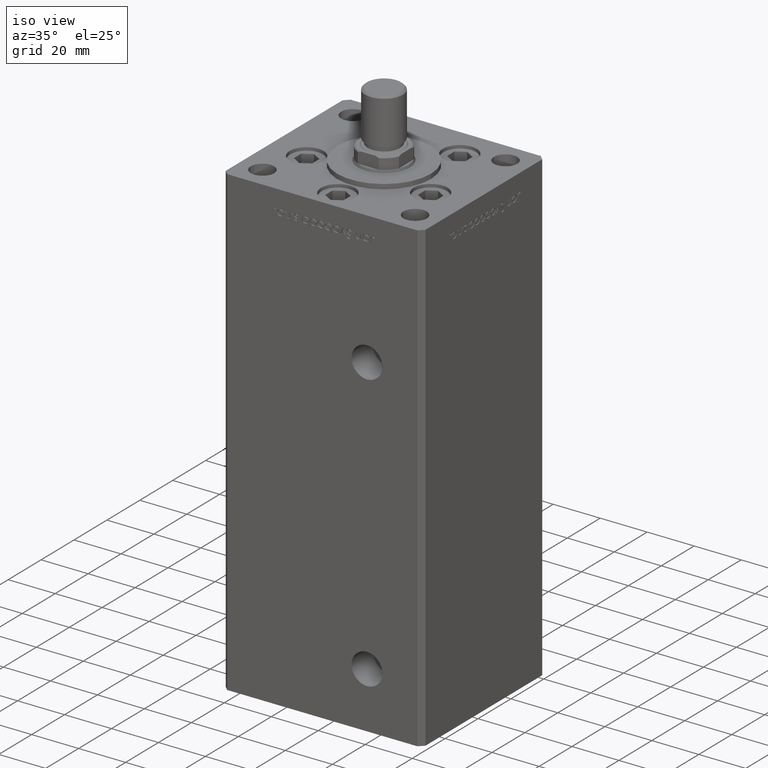
[diagram: clean part render]
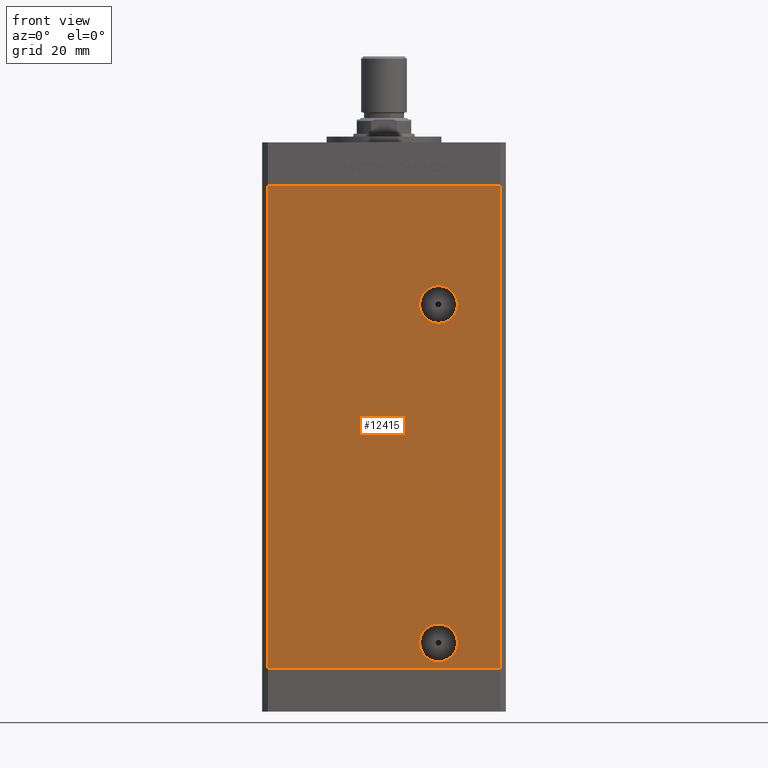
[diagram: tour spotlight — one face highlighted and labeled with its STEP entity id]
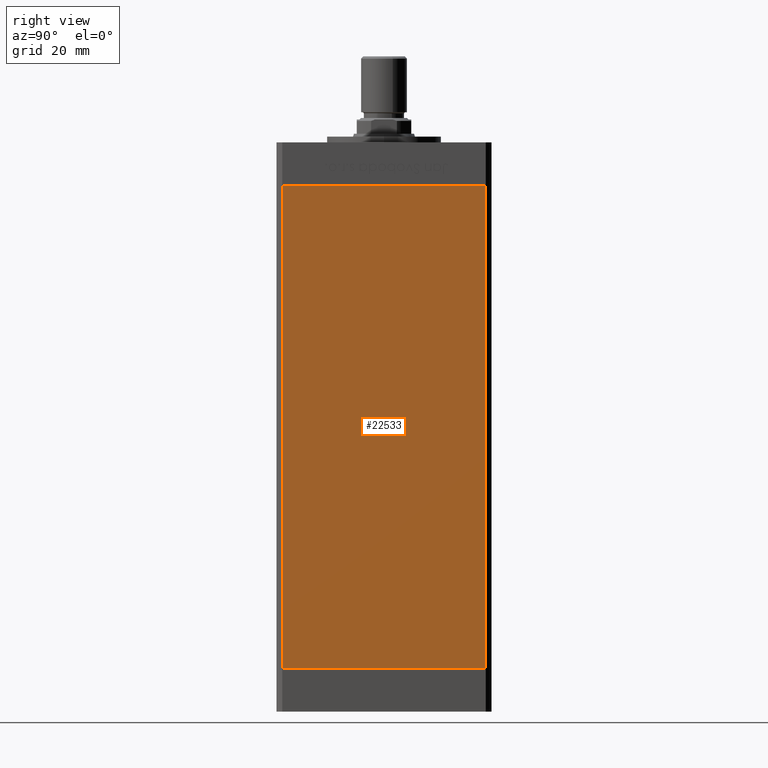
[diagram: tour spotlight — one face highlighted and labeled with its STEP entity id]
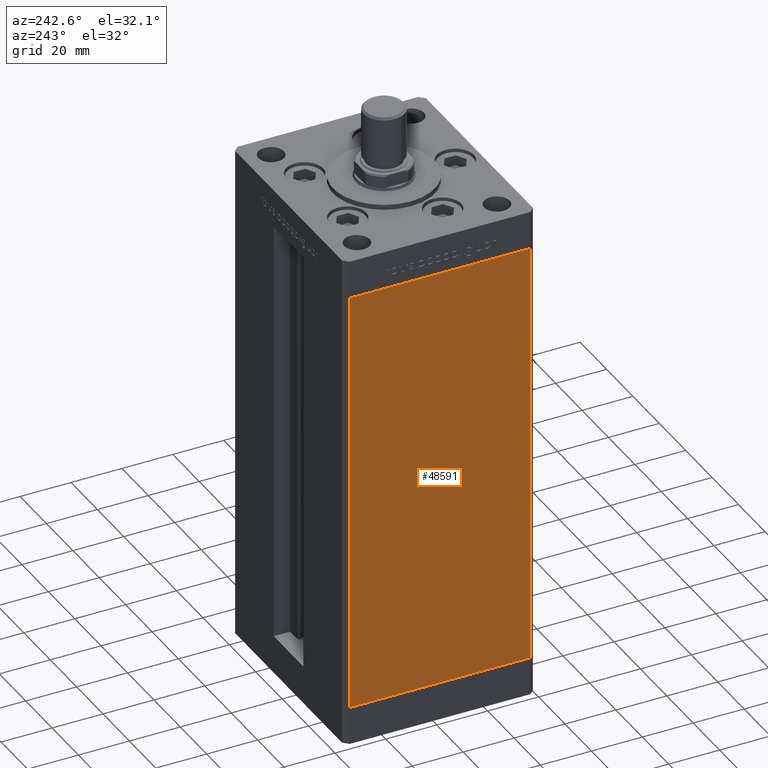
[diagram: tour spotlight — one face highlighted and labeled with its STEP entity id]
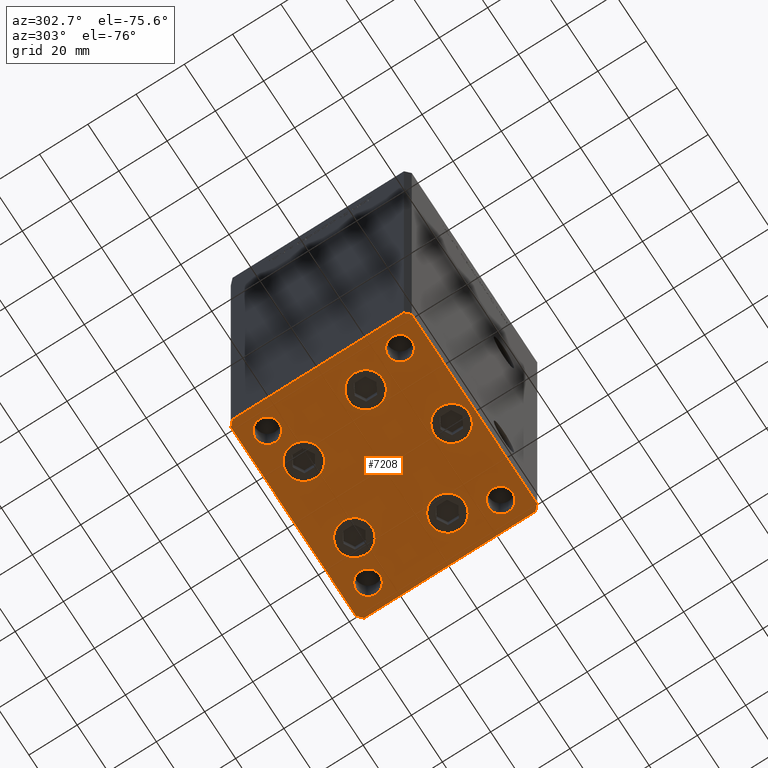
[diagram: tour spotlight — one face highlighted and labeled with its STEP entity id]
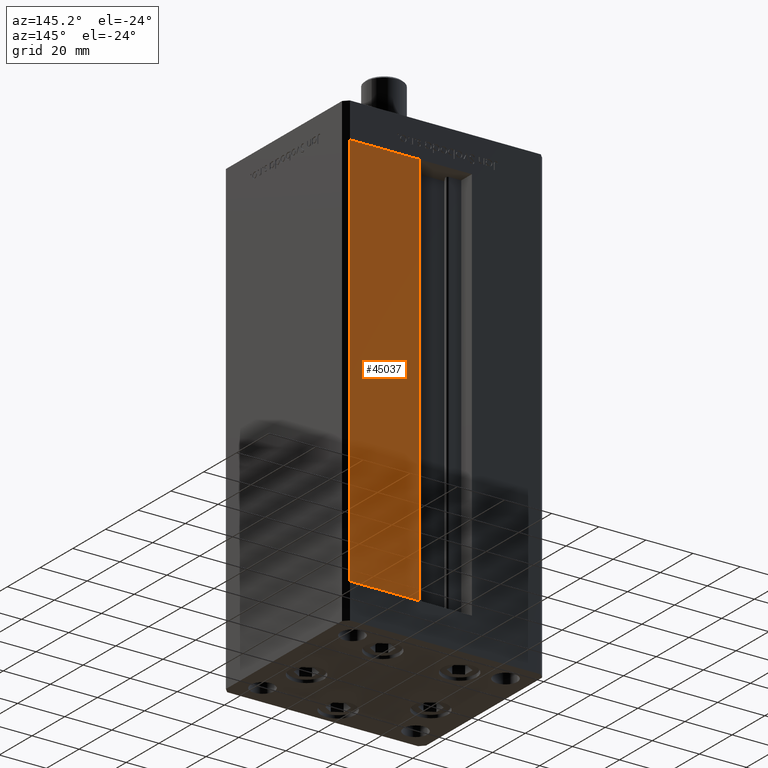
[diagram: tour spotlight — one face highlighted and labeled with its STEP entity id]
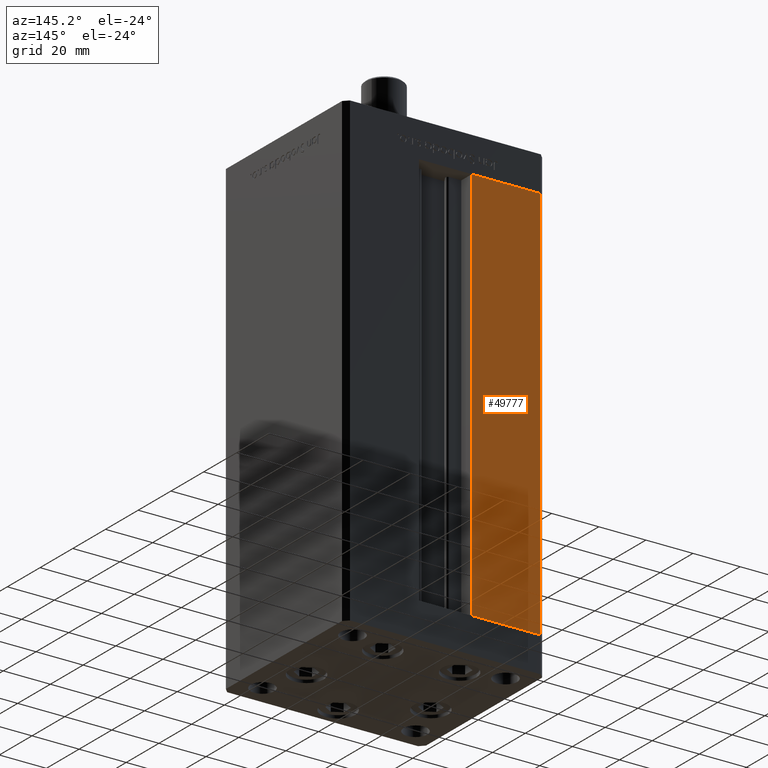
[diagram: tour spotlight — one face highlighted and labeled with its STEP entity id]
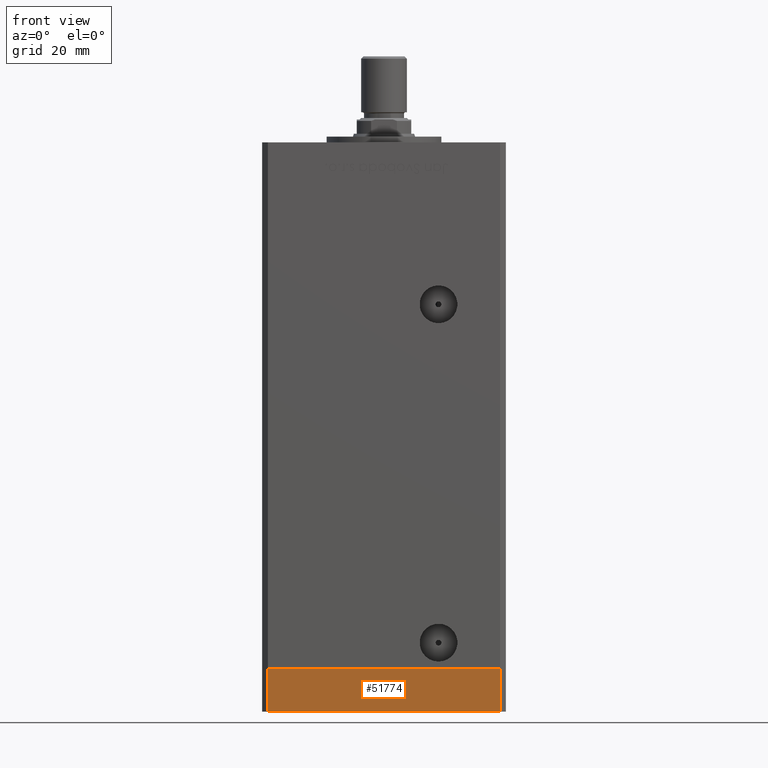
[diagram: tour spotlight — one face highlighted and labeled with its STEP entity id]
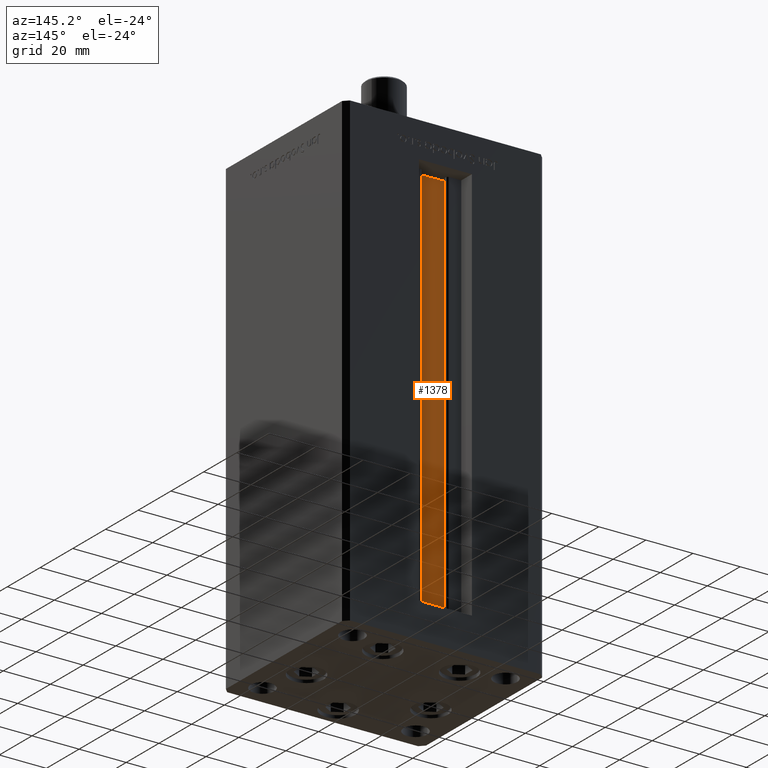
[diagram: tour spotlight — one face highlighted and labeled with its STEP entity id]
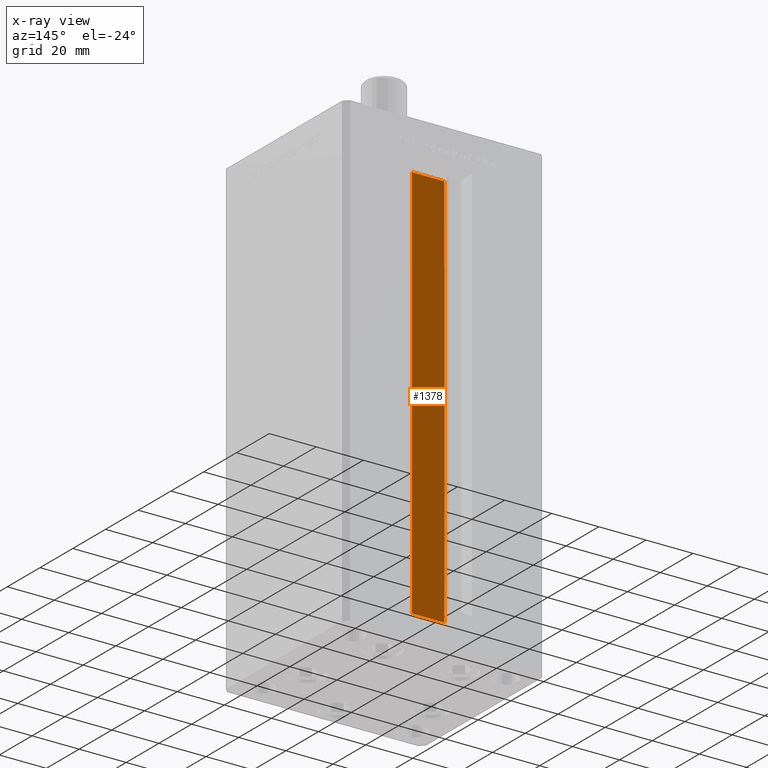
[diagram: x-ray of the same camera — body ghosted, this tour face saturated]
A machine part: a face-by-face anatomy tour. The part has 1191 B-rep faces; the first image is the clean iso view, then the 8 largest visible faces are spotlighted one at a time (largest first), each with its STEP entity span.

Face 1 — front view, entity #12415. In plain terms, the highlighted planar face has unit normal (0, 1, 0).
Definition (entity closure, byte-faithful):
#1472 = DIRECTION ( 'NONE',  ( 1.000000000000000000, 0.000000000000000000, 0.000000000000000000 ) ) ;
#2124 = EDGE_CURVE ( 'NONE', #40896, #43915, #41759, .T. ) ;
#4143 = EDGE_CURVE ( 'NONE', #40734, #43915, #20880, .T. ) ;
#4252 = DIRECTION ( 'NONE',  ( 0.000000000000000000, -1.000000000000000000, 0.000000000000000000 ) ) ;
#5721 = VECTOR ( 'NONE', #29056, 1000.000000000000000 ) ;
#5785 = DIRECTION ( 'NONE',  ( 0.000000000000000000, 0.000000000000000000, -1.000000000000000000 ) ) ;
#6110 = LINE ( 'NONE', #22277, #11914 ) ;
#6567 = CARTESIAN_POINT ( 'NONE',  ( 18.99999999999997513, -37.50000000000000711, 127.0000000000000000 ) ) ;
#6582 = AXIS2_PLACEMENT_3D ( 'NONE', #6567, #42352, #5785 ) ;
#7792 = EDGE_CURVE ( 'NONE', #35535, #40896, #6110, .T. ) ;
#8444 = VECTOR ( 'NONE', #37047, 1000.000000000000000 ) ;
#9617 = ORIENTED_EDGE ( 'NONE', *, *, #36960, .F. ) ;
#11150 = EDGE_CURVE ( 'NONE', #19951, #17121, #13607, .T. ) ;
#11439 = CARTESIAN_POINT ( 'NONE',  ( 18.99999999999997513, -37.50000000000000711, 120.4200000000000159 ) ) ;
#11901 = PLANE ( 'NONE',  #48297 ) ;
#11914 = VECTOR ( 'NONE', #38442, 1000.000000000000000 ) ;
#12218 = CARTESIAN_POINT ( 'NONE',  ( -40.49999999999998579, -37.50000000000000711, 168.5000000000000000 ) ) ;
#12415 = ADVANCED_FACE ( 'NONE', ( #32060, #48201, #32586 ), #11901, .F. ) ;
#12973 = DIRECTION ( 'NONE',  ( 0.000000000000000000, -0.000000000000000000, 1.000000000000000000 ) ) ;
#13607 = CIRCLE ( 'NONE', #49158, 6.579999999999988525 ) ;
#14435 = CARTESIAN_POINT ( 'NONE',  ( -40.49999999999998579, -37.50000000000000711, 0.000000000000000000 ) ) ;
#16639 = CARTESIAN_POINT ( 'NONE',  ( 40.49999999999998579, -37.50000000000000711, 168.5000000000000000 ) ) ;
#16683 = CARTESIAN_POINT ( 'NONE',  ( -40.49999999999998579, -37.50000000000000711, 168.5000000000000000 ) ) ;
#17121 = VERTEX_POINT ( 'NONE', #19203 ) ;
#17209 = CIRCLE ( 'NONE', #22258, 6.579999999999998295 ) ;
#19203 = CARTESIAN_POINT ( 'NONE',  ( 18.99999999999997513, -37.50000000000000711, 133.5800000000000125 ) ) ;
#19298 = EDGE_CURVE ( 'NONE', #47449, #28106, #17209, .T. ) ;
#19951 = VERTEX_POINT ( 'NONE', #11439 ) ;
#20880 = LINE ( 'NONE', #16639, #8444 ) ;
#22258 = AXIS2_PLACEMENT_3D ( 'NONE', #23617, #35049, #39781 ) ;
#22277 = CARTESIAN_POINT ( 'NONE',  ( -40.49999999999998579, -37.50000000000000711, 168.5000000000000000 ) ) ;
#23157 = ORIENTED_EDGE ( 'NONE', *, *, #19298, .F. ) ;
#23617 = CARTESIAN_POINT ( 'NONE',  ( 18.99999999999998934, -37.50000000000000711, 9.000000000000007105 ) ) ;
#24229 = CIRCLE ( 'NONE', #36922, 6.579999999999998295 ) ;
#24908 = CARTESIAN_POINT ( 'NONE',  ( 18.99999999999998934, -37.50000000000000711, 15.58000000000000718 ) ) ;
#25440 = EDGE_LOOP ( 'NONE', ( #9617, #23157 ) ) ;
#25610 = ORIENTED_EDGE ( 'NONE', *, *, #11150, .T. ) ;
#27336 = ORIENTED_EDGE ( 'NONE', *, *, #7792, .T. ) ;
#28106 = VERTEX_POINT ( 'NONE', #41489 ) ;
#28599 = CIRCLE ( 'NONE', #6582, 6.579999999999988525 ) ;
#28778 = LINE ( 'NONE', #41237, #5721 ) ;
#29056 = DIRECTION ( 'NONE',  ( 1.000000000000000000, 0.000000000000000000, 0.000000000000000000 ) ) ;
#29529 = ORIENTED_EDGE ( 'NONE', *, *, #4143, .F. ) ;
#32060 = FACE_BOUND ( 'NONE', #25440, .T. ) ;
#32586 = FACE_BOUND ( 'NONE', #48755, .T. ) ;
#32852 = DIRECTION ( 'NONE',  ( 0.000000000000000000, 1.000000000000000000, 0.000000000000000000 ) ) ;
#34597 = VECTOR ( 'NONE', #1472, 1000.000000000000000 ) ;
#35049 = DIRECTION ( 'NONE',  ( 0.000000000000000000, -1.000000000000000000, 0.000000000000000000 ) ) ;
#35535 = VERTEX_POINT ( 'NONE', #12218 ) ;
#36603 = DIRECTION ( 'NONE',  ( 0.000000000000000000, 0.000000000000000000, -1.000000000000000000 ) ) ;
#36922 = AXIS2_PLACEMENT_3D ( 'NONE', #44542, #4252, #36603 ) ;
#36960 = EDGE_CURVE ( 'NONE', #28106, #47449, #24229, .T. ) ;
#37046 = EDGE_LOOP ( 'NONE', ( #43925, #29529, #51695, #27336 ) ) ;
#37047 = DIRECTION ( 'NONE',  ( -0.000000000000000000, -0.000000000000000000, -1.000000000000000000 ) ) ;
#38343 = DIRECTION ( 'NONE',  ( -0.000000000000000000, 1.000000000000000000, -0.000000000000000000 ) ) ;
#38442 = DIRECTION ( 'NONE',  ( -0.000000000000000000, -0.000000000000000000, -1.000000000000000000 ) ) ;
#39781 = DIRECTION ( 'NONE',  ( 0.000000000000000000, 0.000000000000000000, -1.000000000000000000 ) ) ;
#40149 = EDGE_CURVE ( 'NONE', #35535, #40734, #28778, .T. ) ;
#40717 = EDGE_CURVE ( 'NONE', #17121, #19951, #28599, .T. ) ;
#40734 = VERTEX_POINT ( 'NONE', #43131 ) ;
#40896 = VERTEX_POINT ( 'NONE', #41520 ) ;
#41237 = CARTESIAN_POINT ( 'NONE',  ( -40.49999999999998579, -37.50000000000000711, 168.5000000000000000 ) ) ;
#41489 = CARTESIAN_POINT ( 'NONE',  ( 18.99999999999998934, -37.50000000000000711, 2.420000000000009699 ) ) ;
#41520 = CARTESIAN_POINT ( 'NONE',  ( -40.49999999999998579, -37.50000000000000711, 0.000000000000000000 ) ) ;
#41759 = LINE ( 'NONE', #14435, #34597 ) ;
#42308 = CARTESIAN_POINT ( 'NONE',  ( 18.99999999999997513, -37.50000000000000711, 127.0000000000000000 ) ) ;
#42352 = DIRECTION ( 'NONE',  ( -0.000000000000000000, 1.000000000000000000, -0.000000000000000000 ) ) ;
#43131 = CARTESIAN_POINT ( 'NONE',  ( 40.49999999999998579, -37.50000000000000711, 168.5000000000000000 ) ) ;
#43915 = VERTEX_POINT ( 'NONE', #44860 ) ;
#43925 = ORIENTED_EDGE ( 'NONE', *, *, #2124, .T. ) ;
#44542 = CARTESIAN_POINT ( 'NONE',  ( 18.99999999999998934, -37.50000000000000711, 9.000000000000007105 ) ) ;
#44860 = CARTESIAN_POINT ( 'NONE',  ( 40.49999999999998579, -37.50000000000000711, 0.000000000000000000 ) ) ;
#46896 = ORIENTED_EDGE ( 'NONE', *, *, #40717, .T. ) ;
#47449 = VERTEX_POINT ( 'NONE', #24908 ) ;
#48201 = FACE_OUTER_BOUND ( 'NONE', #37046, .T. ) ;
#48297 = AXIS2_PLACEMENT_3D ( 'NONE', #16683, #32852, #12973 ) ;
#48755 = EDGE_LOOP ( 'NONE', ( #25610, #46896 ) ) ;
#49158 = AXIS2_PLACEMENT_3D ( 'NONE', #42308, #38343, #50527 ) ;
#50527 = DIRECTION ( 'NONE',  ( 0.000000000000000000, 0.000000000000000000, -1.000000000000000000 ) ) ;
#51695 = ORIENTED_EDGE ( 'NONE', *, *, #40149, .F. ) ;

Face 2 — right view, entity #22533. In plain terms, the highlighted planar face has unit normal (1, -0, 0).
Definition (entity closure, byte-faithful):
#4485 = DIRECTION ( 'NONE',  ( 2.931927001650941360E-16, 1.000000000000000000, 0.000000000000000000 ) ) ;
#5741 = CARTESIAN_POINT ( 'NONE',  ( 42.49999999999998579, -35.50000000000000711, 168.5000000000000000 ) ) ;
#6502 = ORIENTED_EDGE ( 'NONE', *, *, #35038, .T. ) ;
#6727 = CARTESIAN_POINT ( 'NONE',  ( 42.50000000000000711, 35.50000000000001421, 168.5000000000000000 ) ) ;
#8457 = PLANE ( 'NONE',  #51170 ) ;
#9584 = CARTESIAN_POINT ( 'NONE',  ( 42.50000000000000711, 35.50000000000001421, 168.5000000000000000 ) ) ;
#10967 = CARTESIAN_POINT ( 'NONE',  ( 42.50000000000000711, 35.50000000000001421, 0.000000000000000000 ) ) ;
#11491 = CARTESIAN_POINT ( 'NONE',  ( 42.49999999999998579, -35.50000000000000711, 168.5000000000000000 ) ) ;
#12761 = EDGE_LOOP ( 'NONE', ( #35847, #20756, #6502, #27734 ) ) ;
#12912 = EDGE_CURVE ( 'NONE', #34528, #45159, #17161, .T. ) ;
#17161 = LINE ( 'NONE', #5741, #50045 ) ;
#20756 = ORIENTED_EDGE ( 'NONE', *, *, #40395, .F. ) ;
#22533 = ADVANCED_FACE ( 'NONE', ( #36292 ), #8457, .T. ) ;
#25748 = DIRECTION ( 'NONE',  ( -0.000000000000000000, -0.000000000000000000, -1.000000000000000000 ) ) ;
#26626 = DIRECTION ( 'NONE',  ( -2.931927001650941360E-16, -1.000000000000000000, 0.000000000000000000 ) ) ;
#27734 = ORIENTED_EDGE ( 'NONE', *, *, #12912, .T. ) ;
#29736 = LINE ( 'NONE', #9584, #40382 ) ;
#30870 = LINE ( 'NONE', #10967, #48799 ) ;
#33132 = DIRECTION ( 'NONE',  ( 1.000000000000000000, -2.931927001650941360E-16, 0.000000000000000000 ) ) ;
#34528 = VERTEX_POINT ( 'NONE', #11491 ) ;
#35038 = EDGE_CURVE ( 'NONE', #48179, #34528, #48471, .T. ) ;
#35847 = ORIENTED_EDGE ( 'NONE', *, *, #38922, .F. ) ;
#36292 = FACE_OUTER_BOUND ( 'NONE', #12761, .T. ) ;
#36346 = CARTESIAN_POINT ( 'NONE',  ( 42.50000000000000711, 35.50000000000001421, 0.000000000000000000 ) ) ;
#36814 = DIRECTION ( 'NONE',  ( -2.931927001650941360E-16, -1.000000000000000000, 0.000000000000000000 ) ) ;
#36968 = VECTOR ( 'NONE', #36814, 1000.000000000000000 ) ;
#37139 = CARTESIAN_POINT ( 'NONE',  ( 42.49999999999998579, -35.50000000000000711, 0.000000000000000000 ) ) ;
#38922 = EDGE_CURVE ( 'NONE', #46424, #45159, #30870, .T. ) ;
#40247 = CARTESIAN_POINT ( 'NONE',  ( 42.50000000000000711, 35.50000000000001421, 168.5000000000000000 ) ) ;
#40257 = CARTESIAN_POINT ( 'NONE',  ( 42.50000000000000711, 35.50000000000001421, 168.5000000000000000 ) ) ;
#40382 = VECTOR ( 'NONE', #25748, 1000.000000000000000 ) ;
#40395 = EDGE_CURVE ( 'NONE', #48179, #46424, #29736, .T. ) ;
#45159 = VERTEX_POINT ( 'NONE', #37139 ) ;
#46019 = DIRECTION ( 'NONE',  ( -0.000000000000000000, -0.000000000000000000, -1.000000000000000000 ) ) ;
#46424 = VERTEX_POINT ( 'NONE', #36346 ) ;
#48179 = VERTEX_POINT ( 'NONE', #6727 ) ;
#48471 = LINE ( 'NONE', #40247, #36968 ) ;
#48799 = VECTOR ( 'NONE', #26626, 1000.000000000000000 ) ;
#50045 = VECTOR ( 'NONE', #46019, 1000.000000000000000 ) ;
#51170 = AXIS2_PLACEMENT_3D ( 'NONE', #40257, #33132, #4485 ) ;

Face 3 — auxiliary view, entity #48591. In plain terms, the highlighted planar face has unit normal (1, 0, 0).
Definition (entity closure, byte-faithful):
#450 = LINE ( 'NONE', #28027, #47518 ) ;
#1528 = CARTESIAN_POINT ( 'NONE',  ( -42.50000000000000711, 35.50000000000001421, 168.5000000000000000 ) ) ;
#1587 = VECTOR ( 'NONE', #14555, 1000.000000000000000 ) ;
#2266 = VECTOR ( 'NONE', #45137, 1000.000000000000000 ) ;
#4318 = ORIENTED_EDGE ( 'NONE', *, *, #31265, .F. ) ;
#6202 = CARTESIAN_POINT ( 'NONE',  ( -42.50000000000000711, 35.50000000000001421, 0.000000000000000000 ) ) ;
#6524 = VECTOR ( 'NONE', #14933, 1000.000000000000000 ) ;
#9370 = CARTESIAN_POINT ( 'NONE',  ( -42.50000000000000711, 35.50000000000001421, 168.5000000000000000 ) ) ;
#10055 = ORIENTED_EDGE ( 'NONE', *, *, #13698, .T. ) ;
#13698 = EDGE_CURVE ( 'NONE', #14776, #41472, #450, .T. ) ;
#14369 = AXIS2_PLACEMENT_3D ( 'NONE', #1528, #44725, #17443 ) ;
#14555 = DIRECTION ( 'NONE',  ( -0.000000000000000000, -0.000000000000000000, -1.000000000000000000 ) ) ;
#14776 = VERTEX_POINT ( 'NONE', #6202 ) ;
#14933 = DIRECTION ( 'NONE',  ( -0.000000000000000000, -0.000000000000000000, -1.000000000000000000 ) ) ;
#16044 = ORIENTED_EDGE ( 'NONE', *, *, #39038, .F. ) ;
#17443 = DIRECTION ( 'NONE',  ( -2.931927001650941360E-16, 1.000000000000000000, 0.000000000000000000 ) ) ;
#22174 = VERTEX_POINT ( 'NONE', #30309 ) ;
#25124 = PLANE ( 'NONE',  #14369 ) ;
#25388 = FACE_OUTER_BOUND ( 'NONE', #28112, .T. ) ;
#25799 = LINE ( 'NONE', #9370, #2266 ) ;
#25973 = CARTESIAN_POINT ( 'NONE',  ( -42.50000000000000711, 35.50000000000001421, 168.5000000000000000 ) ) ;
#27222 = ORIENTED_EDGE ( 'NONE', *, *, #32681, .T. ) ;
#28027 = CARTESIAN_POINT ( 'NONE',  ( -42.50000000000000711, 35.50000000000001421, 0.000000000000000000 ) ) ;
#28112 = EDGE_LOOP ( 'NONE', ( #10055, #4318, #16044, #27222 ) ) ;
#30309 = CARTESIAN_POINT ( 'NONE',  ( -42.50000000000000711, 35.50000000000001421, 168.5000000000000000 ) ) ;
#31265 = EDGE_CURVE ( 'NONE', #48983, #41472, #35587, .T. ) ;
#32681 = EDGE_CURVE ( 'NONE', #22174, #14776, #34441, .T. ) ;
#33801 = CARTESIAN_POINT ( 'NONE',  ( -42.49999999999998579, -35.50000000000000711, 168.5000000000000000 ) ) ;
#34441 = LINE ( 'NONE', #25973, #1587 ) ;
#35587 = LINE ( 'NONE', #51502, #6524 ) ;
#39038 = EDGE_CURVE ( 'NONE', #22174, #48983, #25799, .T. ) ;
#41472 = VERTEX_POINT ( 'NONE', #48012 ) ;
#44180 = DIRECTION ( 'NONE',  ( 2.931927001650941360E-16, -1.000000000000000000, 0.000000000000000000 ) ) ;
#44725 = DIRECTION ( 'NONE',  ( 1.000000000000000000, 2.931927001650941360E-16, -0.000000000000000000 ) ) ;
#45137 = DIRECTION ( 'NONE',  ( 2.931927001650941360E-16, -1.000000000000000000, 0.000000000000000000 ) ) ;
#47518 = VECTOR ( 'NONE', #44180, 1000.000000000000000 ) ;
#48012 = CARTESIAN_POINT ( 'NONE',  ( -42.49999999999998579, -35.50000000000000711, 0.000000000000000000 ) ) ;
#48591 = ADVANCED_FACE ( 'NONE', ( #25388 ), #25124, .F. ) ;
#48983 = VERTEX_POINT ( 'NONE', #33801 ) ;
#51502 = CARTESIAN_POINT ( 'NONE',  ( -42.49999999999998579, -35.50000000000000711, 168.5000000000000000 ) ) ;

Face 4 — auxiliary view, entity #7208. In plain terms, the highlighted planar face has unit normal (0, 0, -1).
Definition (entity closure, byte-faithful):
#447 = LINE ( 'NONE', #15559, #2922 ) ;
#565 = CARTESIAN_POINT ( 'NONE',  ( -40.49999999999999289, -37.50000000000002132, 0.000000000000000000 ) ) ;
#672 = AXIS2_PLACEMENT_3D ( 'NONE', #24625, #45038, #16149 ) ;
#787 = ORIENTED_EDGE ( 'NONE', *, *, #8765, .F. ) ;
#988 = DIRECTION ( 'NONE',  ( 0.000000000000000000, -0.000000000000000000, -1.000000000000000000 ) ) ;
#994 = VECTOR ( 'NONE', #24181, 1000.000000000000000 ) ;
#1236 = LINE ( 'NONE', #29337, #5685 ) ;
#1249 = DIRECTION ( 'NONE',  ( 1.000000000000000000, 0.000000000000000000, 0.000000000000000000 ) ) ;
#1397 = DIRECTION ( 'NONE',  ( 0.000000000000000000, -0.000000000000000000, -1.000000000000000000 ) ) ;
#1478 = EDGE_LOOP ( 'NONE', ( #15781, #29427 ) ) ;
#1654 = ORIENTED_EDGE ( 'NONE', *, *, #4299, .T. ) ;
#1825 = DIRECTION ( 'NONE',  ( 1.000000000000000000, 0.000000000000000000, 0.000000000000000000 ) ) ;
#2922 = VECTOR ( 'NONE', #39678, 1000.000000000000000 ) ;
#3024 = PLANE ( 'NONE',  #22903 ) ;
#3112 = CARTESIAN_POINT ( 'NONE',  ( 23.57291334290542295, 22.75000000000000000, 0.000000000000000000 ) ) ;
#3136 = VECTOR ( 'NONE', #48802, 1000.000000000000000 ) ;
#3348 = DIRECTION ( 'NONE',  ( 0.000000000000000000, -0.000000000000000000, -1.000000000000000000 ) ) ;
#3778 = LINE ( 'NONE', #36375, #994 ) ;
#3851 = LINE ( 'NONE', #52361, #43143 ) ;
#3863 = CARTESIAN_POINT ( 'NONE',  ( -32.50000000000000000, -27.49999999999999645, 0.000000000000000000 ) ) ;
#4181 = EDGE_CURVE ( 'NONE', #32077, #4379, #48195, .T. ) ;
#4299 = EDGE_CURVE ( 'NONE', #14213, #16511, #17772, .T. ) ;
#4360 = CARTESIAN_POINT ( 'NONE',  ( 37.50000000000000000, 27.49999999999999645, 0.000000000000000000 ) ) ;
#4379 = VERTEX_POINT ( 'NONE', #20274 ) ;
#4901 = VERTEX_POINT ( 'NONE', #34249 ) ;
#4960 = CARTESIAN_POINT ( 'NONE',  ( 16.32291334290542295, 22.75000000000000000, 0.000000000000000000 ) ) ;
#5317 = EDGE_CURVE ( 'NONE', #32376, #9216, #3851, .T. ) ;
#5685 = VECTOR ( 'NONE', #6436, 1000.000000000000114 ) ;
#5707 = ORIENTED_EDGE ( 'NONE', *, *, #52305, .F. ) ;
#5968 = DIRECTION ( 'NONE',  ( 1.000000000000000000, 0.000000000000000000, 0.000000000000000000 ) ) ;
#6057 = DIRECTION ( 'NONE',  ( 1.000000000000000000, 0.000000000000000000, 0.000000000000000000 ) ) ;
#6436 = DIRECTION ( 'NONE',  ( -0.7071067811865474617, 0.7071067811865474617, 0.000000000000000000 ) ) ;
#6543 = VECTOR ( 'NONE', #34979, 1000.000000000000000 ) ;
#6573 = DIRECTION ( 'NONE',  ( -0.000000000000000000, 0.000000000000000000, 1.000000000000000000 ) ) ;
#6881 = ORIENTED_EDGE ( 'NONE', *, *, #27195, .T. ) ;
#7013 = FACE_BOUND ( 'NONE', #44092, .T. ) ;
#7043 = CARTESIAN_POINT ( 'NONE',  ( 32.50000000000000000, 27.49999999999999645, 0.000000000000000000 ) ) ;
#7208 = ADVANCED_FACE ( 'NONE', ( #34849, #51274, #15470, #14959, #31654, #26886, #43051, #7013, #27669, #23170 ), #3024, .T. ) ;
#7305 = VERTEX_POINT ( 'NONE', #52306 ) ;
#7678 = ORIENTED_EDGE ( 'NONE', *, *, #51649, .T. ) ;
#8362 = DIRECTION ( 'NONE',  ( 1.000000000000000000, 0.000000000000000000, 0.000000000000000000 ) ) ;
#8546 = CARTESIAN_POINT ( 'NONE',  ( -26.39865316429776954, -9.333333333333337478, 0.000000000000000000 ) ) ;
#8765 = EDGE_CURVE ( 'NONE', #15631, #28525, #36356, .T. ) ;
#9065 = DIRECTION ( 'NONE',  ( 0.000000000000000000, -0.000000000000000000, -1.000000000000000000 ) ) ;
#9141 = CARTESIAN_POINT ( 'NONE',  ( -19.14865316429777309, -9.333333333333335702, 0.000000000000000000 ) ) ;
#9216 = VERTEX_POINT ( 'NONE', #15749 ) ;
#9602 = DIRECTION ( 'NONE',  ( 0.000000000000000000, -0.000000000000000000, -1.000000000000000000 ) ) ;
#10351 = EDGE_LOOP ( 'NONE', ( #27225, #40944 ) ) ;
#10454 = ORIENTED_EDGE ( 'NONE', *, *, #15752, .T. ) ;
#10463 = CARTESIAN_POINT ( 'NONE',  ( 7.250000000000003553, -28.00000000000000000, 0.000000000000000000 ) ) ;
#10535 = CARTESIAN_POINT ( 'NONE',  ( -40.50000000000000711, 37.49999999999997868, 0.000000000000000000 ) ) ;
#10710 = CARTESIAN_POINT ( 'NONE',  ( -42.50000000000000000, -35.50000000000000711, 0.000000000000000000 ) ) ;
#10990 = VERTEX_POINT ( 'NONE', #33333 ) ;
#11045 = VERTEX_POINT ( 'NONE', #17683 ) ;
#11087 = ORIENTED_EDGE ( 'NONE', *, *, #44703, .T. ) ;
#11284 = VERTEX_POINT ( 'NONE', #4360 ) ;
#11346 = AXIS2_PLACEMENT_3D ( 'NONE', #4960, #988, #17162 ) ;
#11469 = DIRECTION ( 'NONE',  ( 0.000000000000000000, -0.000000000000000000, -1.000000000000000000 ) ) ;
#12957 = EDGE_CURVE ( 'NONE', #4901, #16993, #27178, .T. ) ;
#13043 = DIRECTION ( 'NONE',  ( 1.000000000000000000, 0.000000000000000000, 0.000000000000000000 ) ) ;
#13381 = EDGE_LOOP ( 'NONE', ( #46900, #33489 ) ) ;
#13799 = LINE ( 'NONE', #50885, #6543 ) ;
#14083 = DIRECTION ( 'NONE',  ( 1.000000000000000000, 0.000000000000000000, 0.000000000000000000 ) ) ;
#14213 = VERTEX_POINT ( 'NONE', #44050 ) ;
#14468 = AXIS2_PLACEMENT_3D ( 'NONE', #29349, #33840, #1249 ) ;
#14959 = FACE_BOUND ( 'NONE', #13381, .T. ) ;
#15182 = DIRECTION ( 'NONE',  ( 1.000000000000000000, 0.000000000000000000, 0.000000000000000000 ) ) ;
#15210 = DIRECTION ( 'NONE',  ( -0.000000000000000000, 0.000000000000000000, 1.000000000000000000 ) ) ;
#15470 = FACE_BOUND ( 'NONE', #27131, .T. ) ;
#15559 = CARTESIAN_POINT ( 'NONE',  ( 42.50000000000000711, -35.50000000000000000, 0.000000000000000000 ) ) ;
#15631 = VERTEX_POINT ( 'NONE', #29382 ) ;
#15749 = CARTESIAN_POINT ( 'NONE',  ( 42.50000000000000711, -35.50000000000000000, 0.000000000000000000 ) ) ;
#15752 = EDGE_CURVE ( 'NONE', #30071, #7305, #39332, .T. ) ;
#15781 = ORIENTED_EDGE ( 'NONE', *, *, #43344, .T. ) ;
#16046 = DIRECTION ( 'NONE',  ( 0.7071067811865474617, 0.7071067811865474617, 0.000000000000000000 ) ) ;
#16149 = DIRECTION ( 'NONE',  ( 1.000000000000000000, 0.000000000000000000, 0.000000000000000000 ) ) ;
#16178 = CIRCLE ( 'NONE', #51755, 7.249999999999999112 ) ;
#16460 = AXIS2_PLACEMENT_3D ( 'NONE', #45052, #31879, #15182 ) ;
#16511 = VERTEX_POINT ( 'NONE', #31781 ) ;
#16706 = CIRCLE ( 'NONE', #20915, 7.249999999999999112 ) ;
#16739 = ORIENTED_EDGE ( 'NONE', *, *, #35395, .T. ) ;
#16742 = ORIENTED_EDGE ( 'NONE', *, *, #39636, .T. ) ;
#16909 = DIRECTION ( 'NONE',  ( 0.000000000000000000, -0.000000000000000000, -1.000000000000000000 ) ) ;
#16945 = AXIS2_PLACEMENT_3D ( 'NONE', #48437, #16909, #33081 ) ;
#16993 = VERTEX_POINT ( 'NONE', #10463 ) ;
#17162 = DIRECTION ( 'NONE',  ( 1.000000000000000000, 0.000000000000000000, 0.000000000000000000 ) ) ;
#17683 = CARTESIAN_POINT ( 'NONE',  ( -33.64865316429776954, -9.333333333333337478, 0.000000000000000000 ) ) ;
#17740 = CARTESIAN_POINT ( 'NONE',  ( 3.429011037612589276E-15, -28.00000000000000000, 0.000000000000000000 ) ) ;
#17772 = CIRCLE ( 'NONE', #47379, 4.999999999999997335 ) ;
#18209 = CIRCLE ( 'NONE', #47813, 4.999999999999997335 ) ;
#18482 = CARTESIAN_POINT ( 'NONE',  ( -40.50000000000000711, 37.49999999999997868, 0.000000000000000000 ) ) ;
#18988 = CARTESIAN_POINT ( 'NONE',  ( 32.50000000000000000, -27.49999999999999645, 0.000000000000000000 ) ) ;
#19041 = CIRCLE ( 'NONE', #34247, 7.249999999999999112 ) ;
#19146 = VERTEX_POINT ( 'NONE', #45141 ) ;
#19523 = EDGE_LOOP ( 'NONE', ( #45174, #7678 ) ) ;
#19819 = CIRCLE ( 'NONE', #49465, 4.999999999999997335 ) ;
#20274 = CARTESIAN_POINT ( 'NONE',  ( 33.64865316429776954, -9.333333333333328596, 0.000000000000000000 ) ) ;
#20898 = CARTESIAN_POINT ( 'NONE',  ( 42.49999999999992895, 35.50000000000000000, 0.000000000000000000 ) ) ;
#20915 = AXIS2_PLACEMENT_3D ( 'NONE', #31886, #11469, #24177 ) ;
#21033 = ORIENTED_EDGE ( 'NONE', *, *, #23473, .T. ) ;
#21165 = ORIENTED_EDGE ( 'NONE', *, *, #51687, .T. ) ;
#21702 = CARTESIAN_POINT ( 'NONE',  ( -27.50000000000000000, -27.49999999999999645, 0.000000000000000000 ) ) ;
#21993 = AXIS2_PLACEMENT_3D ( 'NONE', #42616, #6573, #6057 ) ;
#22652 = EDGE_CURVE ( 'NONE', #16993, #4901, #37634, .T. ) ;
#22764 = ORIENTED_EDGE ( 'NONE', *, *, #5317, .T. ) ;
#22903 = AXIS2_PLACEMENT_3D ( 'NONE', #39340, #15210, #43820 ) ;
#22916 = DIRECTION ( 'NONE',  ( 0.000000000000000000, -0.000000000000000000, -1.000000000000000000 ) ) ;
#22946 = EDGE_CURVE ( 'NONE', #9216, #44509, #447, .T. ) ;
#23018 = VECTOR ( 'NONE', #26877, 1000.000000000000000 ) ;
#23081 = CARTESIAN_POINT ( 'NONE',  ( -23.57291334290543006, 22.74999999999999645, 0.000000000000000000 ) ) ;
#23140 = EDGE_CURVE ( 'NONE', #31239, #46654, #33401, .T. ) ;
#23170 = FACE_BOUND ( 'NONE', #10351, .T. ) ;
#23375 = CIRCLE ( 'NONE', #25924, 5.000000000000000888 ) ;
#23397 = CARTESIAN_POINT ( 'NONE',  ( 9.072913342905424727, 22.75000000000000000, 0.000000000000000000 ) ) ;
#23473 = EDGE_CURVE ( 'NONE', #31027, #19146, #19041, .T. ) ;
#23664 = CARTESIAN_POINT ( 'NONE',  ( 16.32291334290542295, 22.75000000000000000, 0.000000000000000000 ) ) ;
#24177 = DIRECTION ( 'NONE',  ( 1.000000000000000000, 0.000000000000000000, 0.000000000000000000 ) ) ;
#24181 = DIRECTION ( 'NONE',  ( -1.000000000000000000, -3.426614273534436165E-16, 0.000000000000000000 ) ) ;
#24362 = EDGE_CURVE ( 'NONE', #28525, #15631, #39315, .T. ) ;
#24460 = ORIENTED_EDGE ( 'NONE', *, *, #22946, .T. ) ;
#24498 = VERTEX_POINT ( 'NONE', #29944 ) ;
#24625 = CARTESIAN_POINT ( 'NONE',  ( -16.32291334290543006, 22.74999999999999645, 0.000000000000000000 ) ) ;
#24710 = DIRECTION ( 'NONE',  ( 1.000000000000000000, 0.000000000000000000, 0.000000000000000000 ) ) ;
#25035 = CARTESIAN_POINT ( 'NONE',  ( 40.49999999999991473, 37.50000000000000711, 0.000000000000000000 ) ) ;
#25178 = EDGE_CURVE ( 'NONE', #33753, #11045, #46123, .T. ) ;
#25488 = EDGE_CURVE ( 'NONE', #11284, #24498, #18209, .T. ) ;
#25858 = CARTESIAN_POINT ( 'NONE',  ( -32.50000000000000000, -27.49999999999999645, 0.000000000000000000 ) ) ;
#25924 = AXIS2_PLACEMENT_3D ( 'NONE', #3863, #3348, #8362 ) ;
#25965 = VERTEX_POINT ( 'NONE', #25035 ) ;
#26356 = EDGE_LOOP ( 'NONE', ( #6881, #1654 ) ) ;
#26786 = CARTESIAN_POINT ( 'NONE',  ( -42.50000000000000000, -35.50000000000000711, 0.000000000000000000 ) ) ;
#26868 = CARTESIAN_POINT ( 'NONE',  ( 19.14865316429777309, -9.333333333333330373, 0.000000000000000000 ) ) ;
#26877 = DIRECTION ( 'NONE',  ( 0.7071067811865463515, -0.7071067811865487940, 0.000000000000000000 ) ) ;
#26886 = FACE_BOUND ( 'NONE', #42163, .T. ) ;
#27131 = EDGE_LOOP ( 'NONE', ( #32423, #32937 ) ) ;
#27178 = CIRCLE ( 'NONE', #14468, 7.250000000000000000 ) ;
#27195 = EDGE_CURVE ( 'NONE', #16511, #14213, #19819, .T. ) ;
#27225 = ORIENTED_EDGE ( 'NONE', *, *, #37624, .T. ) ;
#27460 = DIRECTION ( 'NONE',  ( 1.000000000000000000, 0.000000000000000000, 0.000000000000000000 ) ) ;
#27669 = FACE_OUTER_BOUND ( 'NONE', #36477, .T. ) ;
#28028 = CIRCLE ( 'NONE', #37394, 4.999999999999997335 ) ;
#28232 = CARTESIAN_POINT ( 'NONE',  ( 32.50000000000000000, -27.49999999999999645, 0.000000000000000000 ) ) ;
#28525 = VERTEX_POINT ( 'NONE', #51282 ) ;
#29337 = CARTESIAN_POINT ( 'NONE',  ( 42.49999999999992895, 35.50000000000000000, 0.000000000000000000 ) ) ;
#29349 = CARTESIAN_POINT ( 'NONE',  ( 3.429011037612589276E-15, -28.00000000000000000, 0.000000000000000000 ) ) ;
#29382 = CARTESIAN_POINT ( 'NONE',  ( -37.50000000000000711, 27.50000000000000355, 0.000000000000000000 ) ) ;
#29427 = ORIENTED_EDGE ( 'NONE', *, *, #25178, .T. ) ;
#29944 = CARTESIAN_POINT ( 'NONE',  ( 27.50000000000000355, 27.49999999999999645, 0.000000000000000000 ) ) ;
#30071 = VERTEX_POINT ( 'NONE', #26786 ) ;
#30444 = DIRECTION ( 'NONE',  ( 0.000000000000000000, -0.000000000000000000, -1.000000000000000000 ) ) ;
#30864 = DIRECTION ( 'NONE',  ( 1.000000000000000000, 0.000000000000000000, 0.000000000000000000 ) ) ;
#31027 = VERTEX_POINT ( 'NONE', #23081 ) ;
#31239 = VERTEX_POINT ( 'NONE', #23397 ) ;
#31384 = DIRECTION ( 'NONE',  ( 0.000000000000000000, -0.000000000000000000, -1.000000000000000000 ) ) ;
#31654 = FACE_BOUND ( 'NONE', #1478, .T. ) ;
#31750 = AXIS2_PLACEMENT_3D ( 'NONE', #8546, #1397, #24710 ) ;
#31781 = CARTESIAN_POINT ( 'NONE',  ( 37.50000000000000000, -27.49999999999999645, 0.000000000000000000 ) ) ;
#31879 = DIRECTION ( 'NONE',  ( -0.000000000000000000, 0.000000000000000000, 1.000000000000000000 ) ) ;
#31886 = CARTESIAN_POINT ( 'NONE',  ( 26.39865316429776954, -9.333333333333330373, 0.000000000000000000 ) ) ;
#32077 = VERTEX_POINT ( 'NONE', #26868 ) ;
#32097 = EDGE_CURVE ( 'NONE', #4379, #32077, #16706, .T. ) ;
#32376 = VERTEX_POINT ( 'NONE', #41413 ) ;
#32423 = ORIENTED_EDGE ( 'NONE', *, *, #4181, .T. ) ;
#32849 = AXIS2_PLACEMENT_3D ( 'NONE', #33199, #9065, #13043 ) ;
#32937 = ORIENTED_EDGE ( 'NONE', *, *, #32097, .T. ) ;
#33081 = DIRECTION ( 'NONE',  ( 1.000000000000000000, 0.000000000000000000, 0.000000000000000000 ) ) ;
#33199 = CARTESIAN_POINT ( 'NONE',  ( -26.39865316429776954, -9.333333333333337478, 0.000000000000000000 ) ) ;
#33333 = CARTESIAN_POINT ( 'NONE',  ( -42.50000000000000711, 35.49999999999997158, 0.000000000000000000 ) ) ;
#33401 = CIRCLE ( 'NONE', #11346, 7.249999999999999112 ) ;
#33489 = ORIENTED_EDGE ( 'NONE', *, *, #22652, .T. ) ;
#33753 = VERTEX_POINT ( 'NONE', #9141 ) ;
#33813 = ORIENTED_EDGE ( 'NONE', *, *, #43506, .T. ) ;
#33840 = DIRECTION ( 'NONE',  ( 0.000000000000000000, -0.000000000000000000, -1.000000000000000000 ) ) ;
#33978 = CARTESIAN_POINT ( 'NONE',  ( -16.32291334290543006, 22.74999999999999645, 0.000000000000000000 ) ) ;
#34247 = AXIS2_PLACEMENT_3D ( 'NONE', #33978, #9602, #14083 ) ;
#34249 = CARTESIAN_POINT ( 'NONE',  ( -7.249999999999997335, -28.00000000000000000, 0.000000000000000000 ) ) ;
#34303 = EDGE_CURVE ( 'NONE', #52281, #35113, #46269, .T. ) ;
#34849 = FACE_BOUND ( 'NONE', #48372, .T. ) ;
#34979 = DIRECTION ( 'NONE',  ( 9.773090005503140331E-17, -1.000000000000000000, 0.000000000000000000 ) ) ;
#35113 = VERTEX_POINT ( 'NONE', #21702 ) ;
#35341 = ORIENTED_EDGE ( 'NONE', *, *, #24362, .F. ) ;
#35395 = EDGE_CURVE ( 'NONE', #44509, #25965, #1236, .T. ) ;
#35573 = EDGE_CURVE ( 'NONE', #7305, #32376, #45622, .T. ) ;
#36174 = DIRECTION ( 'NONE',  ( 0.000000000000000000, -0.000000000000000000, -1.000000000000000000 ) ) ;
#36356 = CIRCLE ( 'NONE', #21993, 5.000000000000000888 ) ;
#36375 = CARTESIAN_POINT ( 'NONE',  ( 40.49999999999991473, 37.50000000000000711, 0.000000000000000000 ) ) ;
#36477 = EDGE_LOOP ( 'NONE', ( #10454, #50879, #22764, #24460, #16739, #21165, #11087, #16742 ) ) ;
#36710 = DIRECTION ( 'NONE',  ( 1.000000000000000000, 0.000000000000000000, 0.000000000000000000 ) ) ;
#37085 = CIRCLE ( 'NONE', #32849, 7.249999999999999112 ) ;
#37394 = AXIS2_PLACEMENT_3D ( 'NONE', #7043, #46795, #47832 ) ;
#37624 = EDGE_CURVE ( 'NONE', #35113, #52281, #23375, .T. ) ;
#37634 = CIRCLE ( 'NONE', #41861, 7.250000000000000000 ) ;
#37879 = CARTESIAN_POINT ( 'NONE',  ( 32.50000000000000000, 27.49999999999999645, 0.000000000000000000 ) ) ;
#38132 = DIRECTION ( 'NONE',  ( 1.000000000000000000, 0.000000000000000000, 0.000000000000000000 ) ) ;
#39315 = CIRCLE ( 'NONE', #16460, 5.000000000000000888 ) ;
#39332 = LINE ( 'NONE', #10710, #23018 ) ;
#39340 = CARTESIAN_POINT ( 'NONE',  ( 0.000000000000000000, 0.000000000000000000, 0.000000000000000000 ) ) ;
#39636 = EDGE_CURVE ( 'NONE', #10990, #30071, #13799, .T. ) ;
#39678 = DIRECTION ( 'NONE',  ( -1.172770800660376741E-15, 1.000000000000000000, 0.000000000000000000 ) ) ;
#39882 = CARTESIAN_POINT ( 'NONE',  ( -37.50000000000000711, -27.49999999999999645, 0.000000000000000000 ) ) ;
#40944 = ORIENTED_EDGE ( 'NONE', *, *, #34303, .T. ) ;
#41413 = CARTESIAN_POINT ( 'NONE',  ( 40.50000000000000000, -37.50000000000000711, 0.000000000000000000 ) ) ;
#41861 = AXIS2_PLACEMENT_3D ( 'NONE', #17740, #30444, #1825 ) ;
#42163 = EDGE_LOOP ( 'NONE', ( #46439, #5707 ) ) ;
#42616 = CARTESIAN_POINT ( 'NONE',  ( -32.50000000000000000, 27.50000000000000355, 0.000000000000000000 ) ) ;
#43051 = FACE_BOUND ( 'NONE', #26356, .T. ) ;
#43117 = LINE ( 'NONE', #18482, #47278 ) ;
#43143 = VECTOR ( 'NONE', #16046, 1000.000000000000114 ) ;
#43344 = EDGE_CURVE ( 'NONE', #11045, #33753, #37085, .T. ) ;
#43506 = EDGE_CURVE ( 'NONE', #19146, #31027, #50626, .T. ) ;
#43820 = DIRECTION ( 'NONE',  ( 1.000000000000000000, 0.000000000000000000, 0.000000000000000000 ) ) ;
#44050 = CARTESIAN_POINT ( 'NONE',  ( 27.50000000000000355, -27.49999999999999645, 0.000000000000000000 ) ) ;
#44092 = EDGE_LOOP ( 'NONE', ( #35341, #787 ) ) ;
#44509 = VERTEX_POINT ( 'NONE', #20898 ) ;
#44703 = EDGE_CURVE ( 'NONE', #45728, #10990, #43117, .T. ) ;
#45038 = DIRECTION ( 'NONE',  ( 0.000000000000000000, -0.000000000000000000, -1.000000000000000000 ) ) ;
#45052 = CARTESIAN_POINT ( 'NONE',  ( -32.50000000000000000, 27.50000000000000355, 0.000000000000000000 ) ) ;
#45141 = CARTESIAN_POINT ( 'NONE',  ( -9.072913342905431833, 22.74999999999999645, 0.000000000000000000 ) ) ;
#45174 = ORIENTED_EDGE ( 'NONE', *, *, #23140, .T. ) ;
#45622 = LINE ( 'NONE', #565, #3136 ) ;
#45728 = VERTEX_POINT ( 'NONE', #10535 ) ;
#46123 = CIRCLE ( 'NONE', #31750, 7.249999999999999112 ) ;
#46269 = CIRCLE ( 'NONE', #50520, 5.000000000000000888 ) ;
#46439 = ORIENTED_EDGE ( 'NONE', *, *, #25488, .F. ) ;
#46654 = VERTEX_POINT ( 'NONE', #3112 ) ;
#46795 = DIRECTION ( 'NONE',  ( -0.000000000000000000, 0.000000000000000000, 1.000000000000000000 ) ) ;
#46829 = DIRECTION ( 'NONE',  ( -0.7071067811865463515, -0.7071067811865487940, 0.000000000000000000 ) ) ;
#46900 = ORIENTED_EDGE ( 'NONE', *, *, #12957, .T. ) ;
#47278 = VECTOR ( 'NONE', #46829, 1000.000000000000000 ) ;
#47379 = AXIS2_PLACEMENT_3D ( 'NONE', #18988, #47598, #27460 ) ;
#47598 = DIRECTION ( 'NONE',  ( 0.000000000000000000, -0.000000000000000000, -1.000000000000000000 ) ) ;
#47813 = AXIS2_PLACEMENT_3D ( 'NONE', #37879, #49557, #38132 ) ;
#47832 = DIRECTION ( 'NONE',  ( 1.000000000000000000, 0.000000000000000000, 0.000000000000000000 ) ) ;
#48195 = CIRCLE ( 'NONE', #16945, 7.249999999999999112 ) ;
#48372 = EDGE_LOOP ( 'NONE', ( #21033, #33813 ) ) ;
#48437 = CARTESIAN_POINT ( 'NONE',  ( 26.39865316429776954, -9.333333333333330373, 0.000000000000000000 ) ) ;
#48802 = DIRECTION ( 'NONE',  ( 1.000000000000000000, 1.713307136767217096E-16, 0.000000000000000000 ) ) ;
#49465 = AXIS2_PLACEMENT_3D ( 'NONE', #28232, #36174, #36710 ) ;
#49557 = DIRECTION ( 'NONE',  ( -0.000000000000000000, 0.000000000000000000, 1.000000000000000000 ) ) ;
#50520 = AXIS2_PLACEMENT_3D ( 'NONE', #25858, #22916, #5968 ) ;
#50626 = CIRCLE ( 'NONE', #672, 7.249999999999999112 ) ;
#50879 = ORIENTED_EDGE ( 'NONE', *, *, #35573, .T. ) ;
#50885 = CARTESIAN_POINT ( 'NONE',  ( -42.50000000000000711, 35.49999999999997158, 0.000000000000000000 ) ) ;
#51274 = FACE_BOUND ( 'NONE', #19523, .T. ) ;
#51282 = CARTESIAN_POINT ( 'NONE',  ( -27.50000000000000000, 27.50000000000000355, 0.000000000000000000 ) ) ;
#51649 = EDGE_CURVE ( 'NONE', #46654, #31239, #16178, .T. ) ;
#51687 = EDGE_CURVE ( 'NONE', #25965, #45728, #3778, .T. ) ;
#51755 = AXIS2_PLACEMENT_3D ( 'NONE', #23664, #31384, #30864 ) ;
#52281 = VERTEX_POINT ( 'NONE', #39882 ) ;
#52305 = EDGE_CURVE ( 'NONE', #24498, #11284, #28028, .T. ) ;
#52306 = CARTESIAN_POINT ( 'NONE',  ( -40.49999999999999289, -37.50000000000002132, 0.000000000000000000 ) ) ;
#52361 = CARTESIAN_POINT ( 'NONE',  ( 40.50000000000000000, -37.50000000000000711, 0.000000000000000000 ) ) ;

Face 5 — auxiliary view, entity #45037. In plain terms, the highlighted planar face has unit normal (-0, -1, 0).
Definition (entity closure, byte-faithful):
#844 = LINE ( 'NONE', #4817, #43934 ) ;
#1348 = EDGE_LOOP ( 'NONE', ( #50563, #23988, #50139, #1622 ) ) ;
#1622 = ORIENTED_EDGE ( 'NONE', *, *, #33667, .T. ) ;
#4817 = CARTESIAN_POINT ( 'NONE',  ( 11.25000000000000000, 37.50000000000000000, 0.000000000000000000 ) ) ;
#4996 = DIRECTION ( 'NONE',  ( -0.000000000000000000, -0.000000000000000000, -1.000000000000000000 ) ) ;
#5972 = FACE_OUTER_BOUND ( 'NONE', #1348, .T. ) ;
#8810 = CARTESIAN_POINT ( 'NONE',  ( -11.25000000000000000, 37.50000000000000000, 0.000000000000000000 ) ) ;
#10721 = PLANE ( 'NONE',  #39631 ) ;
#11596 = VERTEX_POINT ( 'NONE', #41076 ) ;
#14180 = DIRECTION ( 'NONE',  ( -2.372271420139223331E-16, -1.000000000000000000, 0.000000000000000000 ) ) ;
#17556 = DIRECTION ( 'NONE',  ( 1.000000000000000000, 0.000000000000000000, 0.000000000000000000 ) ) ;
#20987 = DIRECTION ( 'NONE',  ( -0.000000000000000000, -0.000000000000000000, 1.000000000000000000 ) ) ;
#22142 = DIRECTION ( 'NONE',  ( 1.000000000000000000, -2.372271420139223331E-16, 0.000000000000000000 ) ) ;
#23478 = EDGE_CURVE ( 'NONE', #37862, #11596, #41927, .T. ) ;
#23988 = ORIENTED_EDGE ( 'NONE', *, *, #46569, .T. ) ;
#26341 = VERTEX_POINT ( 'NONE', #28681 ) ;
#28135 = VERTEX_POINT ( 'NONE', #46230 ) ;
#28681 = CARTESIAN_POINT ( 'NONE',  ( 40.50000000000000000, 37.50000000000000711, 0.000000000000000000 ) ) ;
#28683 = DIRECTION ( 'NONE',  ( -1.000000000000000000, 2.372271420139223331E-16, 0.000000000000000000 ) ) ;
#30258 = CARTESIAN_POINT ( 'NONE',  ( -11.25000000000000000, 37.50000000000000000, 168.5000000000000000 ) ) ;
#30358 = CARTESIAN_POINT ( 'NONE',  ( 11.24999999999999289, 37.50000000000000000, 168.5000000000000000 ) ) ;
#30891 = VECTOR ( 'NONE', #17556, 1000.000000000000000 ) ;
#31297 = EDGE_CURVE ( 'NONE', #26341, #28135, #49377, .T. ) ;
#33667 = EDGE_CURVE ( 'NONE', #11596, #26341, #48453, .T. ) ;
#35317 = VECTOR ( 'NONE', #28683, 1000.000000000000000 ) ;
#36927 = VECTOR ( 'NONE', #4996, 1000.000000000000000 ) ;
#37862 = VERTEX_POINT ( 'NONE', #30358 ) ;
#39631 = AXIS2_PLACEMENT_3D ( 'NONE', #42536, #14180, #22142 ) ;
#41076 = CARTESIAN_POINT ( 'NONE',  ( 40.50000000000000000, 37.50000000000000711, 168.5000000000000000 ) ) ;
#41927 = LINE ( 'NONE', #30258, #30891 ) ;
#42536 = CARTESIAN_POINT ( 'NONE',  ( -11.25000000000000000, 37.50000000000000000, 168.5000000000000000 ) ) ;
#43934 = VECTOR ( 'NONE', #20987, 1000.000000000000000 ) ;
#45037 = ADVANCED_FACE ( 'NONE', ( #5972 ), #10721, .F. ) ;
#46230 = CARTESIAN_POINT ( 'NONE',  ( 11.25000000000000000, 37.50000000000000000, 0.000000000000000000 ) ) ;
#46569 = EDGE_CURVE ( 'NONE', #28135, #37862, #844, .T. ) ;
#48453 = LINE ( 'NONE', #52430, #36927 ) ;
#49377 = LINE ( 'NONE', #8810, #35317 ) ;
#50139 = ORIENTED_EDGE ( 'NONE', *, *, #23478, .T. ) ;
#50563 = ORIENTED_EDGE ( 'NONE', *, *, #31297, .T. ) ;
#52430 = CARTESIAN_POINT ( 'NONE',  ( 40.50000000000000000, 37.50000000000000711, 168.5000000000000000 ) ) ;

Face 6 — auxiliary view, entity #49777. In plain terms, the highlighted planar face has unit normal (-0, -1, 0).
Definition (entity closure, byte-faithful):
#1049 = LINE ( 'NONE', #31229, #44835 ) ;
#1401 = DIRECTION ( 'NONE',  ( -0.000000000000000000, -0.000000000000000000, -1.000000000000000000 ) ) ;
#1900 = DIRECTION ( 'NONE',  ( -2.372271420139223331E-16, -1.000000000000000000, 0.000000000000000000 ) ) ;
#2329 = DIRECTION ( 'NONE',  ( 1.000000000000000000, 0.000000000000000000, 0.000000000000000000 ) ) ;
#3895 = VERTEX_POINT ( 'NONE', #16546 ) ;
#3973 = ORIENTED_EDGE ( 'NONE', *, *, #8713, .T. ) ;
#5489 = EDGE_CURVE ( 'NONE', #13935, #47034, #51786, .T. ) ;
#6138 = FACE_OUTER_BOUND ( 'NONE', #28631, .T. ) ;
#6208 = CARTESIAN_POINT ( 'NONE',  ( -40.50000000000000000, 37.50000000000000711, 168.5000000000000000 ) ) ;
#6808 = AXIS2_PLACEMENT_3D ( 'NONE', #42701, #1900, #38731 ) ;
#8058 = CARTESIAN_POINT ( 'NONE',  ( -11.25000000000000000, 37.50000000000000000, 0.000000000000000000 ) ) ;
#8713 = EDGE_CURVE ( 'NONE', #48054, #3895, #1049, .T. ) ;
#13064 = LINE ( 'NONE', #13331, #21275 ) ;
#13331 = CARTESIAN_POINT ( 'NONE',  ( -40.50000000000000000, 37.50000000000000711, 168.5000000000000000 ) ) ;
#13935 = VERTEX_POINT ( 'NONE', #8058 ) ;
#15463 = DIRECTION ( 'NONE',  ( -1.000000000000000000, 2.372271420139223331E-16, 0.000000000000000000 ) ) ;
#16546 = CARTESIAN_POINT ( 'NONE',  ( -11.25000000000000000, 37.50000000000000000, 168.5000000000000000 ) ) ;
#18581 = ORIENTED_EDGE ( 'NONE', *, *, #46703, .F. ) ;
#21275 = VECTOR ( 'NONE', #1401, 1000.000000000000000 ) ;
#21567 = ORIENTED_EDGE ( 'NONE', *, *, #52435, .F. ) ;
#28631 = EDGE_LOOP ( 'NONE', ( #3973, #18581, #36310, #21567 ) ) ;
#30588 = CARTESIAN_POINT ( 'NONE',  ( -40.50000000000000000, 37.50000000000000711, 0.000000000000000000 ) ) ;
#31051 = PLANE ( 'NONE',  #6808 ) ;
#31229 = CARTESIAN_POINT ( 'NONE',  ( -11.25000000000000000, 37.50000000000000000, 168.5000000000000000 ) ) ;
#31305 = VECTOR ( 'NONE', #35446, 1000.000000000000000 ) ;
#31494 = LINE ( 'NONE', #47633, #31305 ) ;
#35446 = DIRECTION ( 'NONE',  ( -0.000000000000000000, -0.000000000000000000, 1.000000000000000000 ) ) ;
#36310 = ORIENTED_EDGE ( 'NONE', *, *, #5489, .T. ) ;
#38731 = DIRECTION ( 'NONE',  ( 1.000000000000000000, -2.372271420139223331E-16, 0.000000000000000000 ) ) ;
#39801 = VECTOR ( 'NONE', #15463, 1000.000000000000000 ) ;
#42701 = CARTESIAN_POINT ( 'NONE',  ( -11.25000000000000000, 37.50000000000000000, 168.5000000000000000 ) ) ;
#44835 = VECTOR ( 'NONE', #2329, 1000.000000000000000 ) ;
#46703 = EDGE_CURVE ( 'NONE', #13935, #3895, #31494, .T. ) ;
#47034 = VERTEX_POINT ( 'NONE', #30588 ) ;
#47633 = CARTESIAN_POINT ( 'NONE',  ( -11.25000000000000000, 37.50000000000000000, 0.000000000000000000 ) ) ;
#48054 = VERTEX_POINT ( 'NONE', #6208 ) ;
#49777 = ADVANCED_FACE ( 'NONE', ( #6138 ), #31051, .F. ) ;
#51520 = CARTESIAN_POINT ( 'NONE',  ( -11.25000000000000000, 37.50000000000000000, 0.000000000000000000 ) ) ;
#51786 = LINE ( 'NONE', #51520, #39801 ) ;
#52435 = EDGE_CURVE ( 'NONE', #48054, #47034, #13064, .T. ) ;

Face 7 — front view, entity #51774. In plain terms, the highlighted planar face has unit normal (-0, -1, -0).
Definition (entity closure, byte-faithful):
#565 = CARTESIAN_POINT ( 'NONE',  ( -40.49999999999999289, -37.50000000000002132, 0.000000000000000000 ) ) ;
#596 = VECTOR ( 'NONE', #3685, 1000.000000000000000 ) ;
#2063 = LINE ( 'NONE', #6829, #29843 ) ;
#2302 = EDGE_CURVE ( 'NONE', #11225, #32376, #27023, .T. ) ;
#3136 = VECTOR ( 'NONE', #48802, 1000.000000000000000 ) ;
#3685 = DIRECTION ( 'NONE',  ( 0.000000000000000000, 0.000000000000000000, 1.000000000000000000 ) ) ;
#4849 = PLANE ( 'NONE',  #26369 ) ;
#6829 = CARTESIAN_POINT ( 'NONE',  ( -40.49999999999999289, -37.50000000000002132, -15.00000000000000000 ) ) ;
#7305 = VERTEX_POINT ( 'NONE', #52306 ) ;
#8707 = VERTEX_POINT ( 'NONE', #25159 ) ;
#8988 = LINE ( 'NONE', #25154, #596 ) ;
#10895 = ORIENTED_EDGE ( 'NONE', *, *, #2302, .T. ) ;
#11225 = VERTEX_POINT ( 'NONE', #27450 ) ;
#12519 = CARTESIAN_POINT ( 'NONE',  ( -40.49999999999999289, -37.50000000000002132, -15.00000000000000000 ) ) ;
#14781 = DIRECTION ( 'NONE',  ( 1.000000000000000000, 1.713307136767217096E-16, 0.000000000000000000 ) ) ;
#15970 = FACE_OUTER_BOUND ( 'NONE', #51020, .T. ) ;
#17589 = EDGE_CURVE ( 'NONE', #8707, #11225, #2063, .T. ) ;
#17721 = ORIENTED_EDGE ( 'NONE', *, *, #35573, .F. ) ;
#19078 = DIRECTION ( 'NONE',  ( 0.000000000000000000, 0.000000000000000000, 1.000000000000000000 ) ) ;
#20753 = DIRECTION ( 'NONE',  ( 1.000000000000000000, 1.713307136767217096E-16, 0.000000000000000000 ) ) ;
#21013 = DIRECTION ( 'NONE',  ( 1.713307136767217096E-16, -1.000000000000000000, 0.000000000000000000 ) ) ;
#25154 = CARTESIAN_POINT ( 'NONE',  ( -40.49999999999999289, -37.50000000000002132, -15.00000000000000000 ) ) ;
#25159 = CARTESIAN_POINT ( 'NONE',  ( -40.49999999999999289, -37.50000000000002132, -15.00000000000000000 ) ) ;
#26369 = AXIS2_PLACEMENT_3D ( 'NONE', #12519, #21013, #20753 ) ;
#27023 = LINE ( 'NONE', #43188, #39689 ) ;
#27450 = CARTESIAN_POINT ( 'NONE',  ( 40.50000000000000000, -37.50000000000000711, -15.00000000000000000 ) ) ;
#29843 = VECTOR ( 'NONE', #14781, 1000.000000000000000 ) ;
#32376 = VERTEX_POINT ( 'NONE', #41413 ) ;
#35068 = EDGE_CURVE ( 'NONE', #8707, #7305, #8988, .T. ) ;
#35484 = ORIENTED_EDGE ( 'NONE', *, *, #35068, .F. ) ;
#35573 = EDGE_CURVE ( 'NONE', #7305, #32376, #45622, .T. ) ;
#39689 = VECTOR ( 'NONE', #19078, 1000.000000000000000 ) ;
#41413 = CARTESIAN_POINT ( 'NONE',  ( 40.50000000000000000, -37.50000000000000711, 0.000000000000000000 ) ) ;
#43188 = CARTESIAN_POINT ( 'NONE',  ( 40.50000000000000000, -37.50000000000000711, -15.00000000000000000 ) ) ;
#45622 = LINE ( 'NONE', #565, #3136 ) ;
#48802 = DIRECTION ( 'NONE',  ( 1.000000000000000000, 1.713307136767217096E-16, 0.000000000000000000 ) ) ;
#50641 = ORIENTED_EDGE ( 'NONE', *, *, #17589, .T. ) ;
#51020 = EDGE_LOOP ( 'NONE', ( #17721, #35484, #50641, #10895 ) ) ;
#51774 = ADVANCED_FACE ( 'NONE', ( #15970 ), #4849, .T. ) ;
#52306 = CARTESIAN_POINT ( 'NONE',  ( -40.49999999999999289, -37.50000000000002132, 0.000000000000000000 ) ) ;

Face 8 — auxiliary view, entity #1378. An x-ray twin of the same camera follows (body ghosted, this face saturated) — the face is partly hidden behind the body. In plain terms, the highlighted planar face has unit normal (0, -1, 0).
Definition (entity closure, byte-faithful):
#411 = VECTOR ( 'NONE', #46945, 1000.000000000000000 ) ;
#694 = DIRECTION ( 'NONE',  ( -0.000000000000000000, -0.000000000000000000, 1.000000000000000000 ) ) ;
#808 = PLANE ( 'NONE',  #14279 ) ;
#1378 = ADVANCED_FACE ( 'NONE', ( #32615 ), #808, .F. ) ;
#2344 = CARTESIAN_POINT ( 'NONE',  ( 0.000000000000000000, 26.99999999999986855, 168.5000000000000000 ) ) ;
#2609 = DIRECTION ( 'NONE',  ( -1.000000000000000000, 0.000000000000000000, 0.000000000000000000 ) ) ;
#4321 = EDGE_CURVE ( 'NONE', #34731, #5823, #47847, .T. ) ;
#5823 = VERTEX_POINT ( 'NONE', #39778 ) ;
#6665 = LINE ( 'NONE', #10117, #411 ) ;
#9009 = VERTEX_POINT ( 'NONE', #47882 ) ;
#10117 = CARTESIAN_POINT ( 'NONE',  ( 6.876153656360465938, 26.99999999999986855, 0.000000000000000000 ) ) ;
#10780 = EDGE_CURVE ( 'NONE', #5823, #33929, #26986, .T. ) ;
#14279 = AXIS2_PLACEMENT_3D ( 'NONE', #29446, #33161, #24924 ) ;
#15800 = CARTESIAN_POINT ( 'NONE',  ( -6.876153656360465938, 26.99999999999986855, 0.000000000000000000 ) ) ;
#17426 = ORIENTED_EDGE ( 'NONE', *, *, #10780, .F. ) ;
#18725 = ORIENTED_EDGE ( 'NONE', *, *, #4321, .F. ) ;
#20697 = CARTESIAN_POINT ( 'NONE',  ( -6.876153656360465938, 26.99999999999986855, 168.5000000000000000 ) ) ;
#21073 = VECTOR ( 'NONE', #694, 1000.000000000000000 ) ;
#24924 = DIRECTION ( 'NONE',  ( 0.000000000000000000, 0.000000000000000000, -1.000000000000000000 ) ) ;
#25415 = EDGE_CURVE ( 'NONE', #9009, #34731, #6665, .T. ) ;
#26986 = LINE ( 'NONE', #2344, #27963 ) ;
#27963 = VECTOR ( 'NONE', #2609, 1000.000000000000000 ) ;
#29446 = CARTESIAN_POINT ( 'NONE',  ( 6.876153656360465938, 26.99999999999986855, 0.000000000000000000 ) ) ;
#31189 = CARTESIAN_POINT ( 'NONE',  ( 6.876153656360465938, 26.99999999999986855, 0.000000000000000000 ) ) ;
#31853 = CARTESIAN_POINT ( 'NONE',  ( 6.876153656360465938, 26.99999999999986855, 0.000000000000000000 ) ) ;
#32615 = FACE_OUTER_BOUND ( 'NONE', #47779, .T. ) ;
#33161 = DIRECTION ( 'NONE',  ( 0.000000000000000000, -1.000000000000000000, -0.000000000000000000 ) ) ;
#33929 = VERTEX_POINT ( 'NONE', #20697 ) ;
#34731 = VERTEX_POINT ( 'NONE', #31853 ) ;
#35531 = VECTOR ( 'NONE', #47073, 1000.000000000000000 ) ;
#35943 = LINE ( 'NONE', #15800, #21073 ) ;
#39778 = CARTESIAN_POINT ( 'NONE',  ( 6.876153656360465938, 26.99999999999986855, 168.5000000000000000 ) ) ;
#43064 = ORIENTED_EDGE ( 'NONE', *, *, #45830, .T. ) ;
#45830 = EDGE_CURVE ( 'NONE', #9009, #33929, #35943, .T. ) ;
#46909 = ORIENTED_EDGE ( 'NONE', *, *, #25415, .F. ) ;
#46945 = DIRECTION ( 'NONE',  ( 1.000000000000000000, -0.000000000000000000, -0.000000000000000000 ) ) ;
#47073 = DIRECTION ( 'NONE',  ( -0.000000000000000000, -0.000000000000000000, 1.000000000000000000 ) ) ;
#47779 = EDGE_LOOP ( 'NONE', ( #18725, #46909, #43064, #17426 ) ) ;
#47847 = LINE ( 'NONE', #31189, #35531 ) ;
#47882 = CARTESIAN_POINT ( 'NONE',  ( -6.876153656360465938, 26.99999999999986855, 0.000000000000000000 ) ) ;